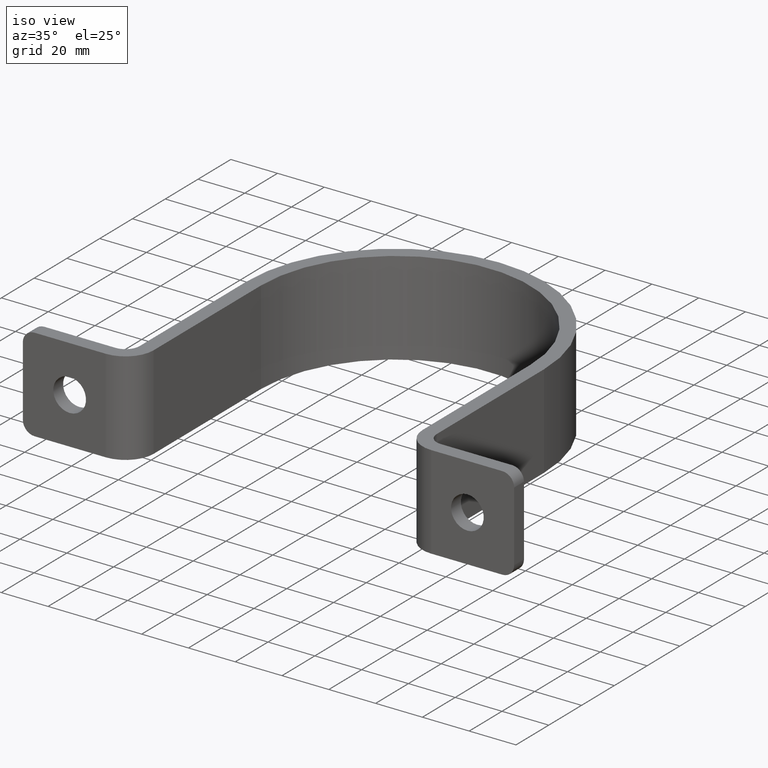
[diagram: clean part render]
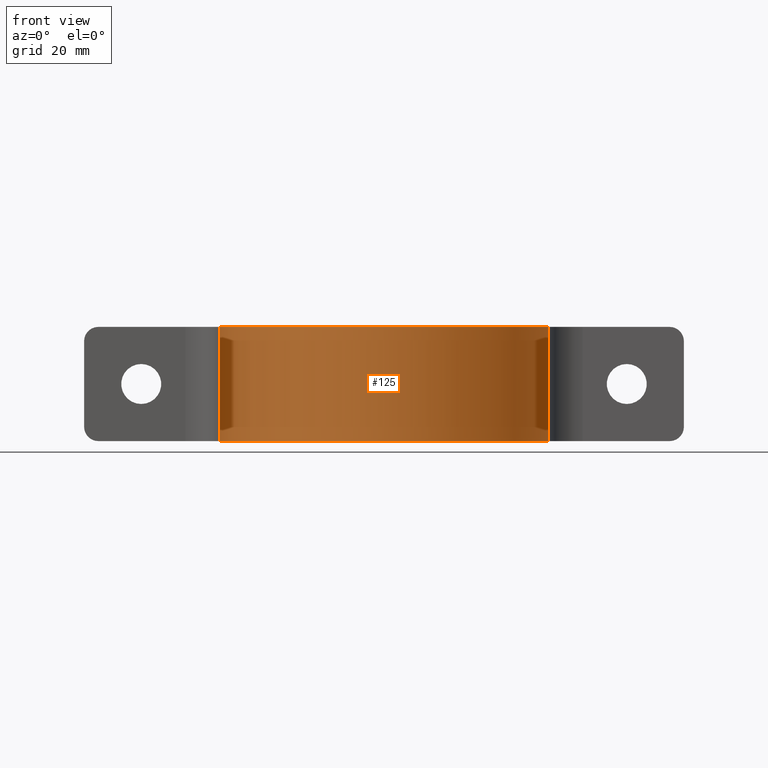
[diagram: tour spotlight — one face highlighted and labeled with its STEP entity id]
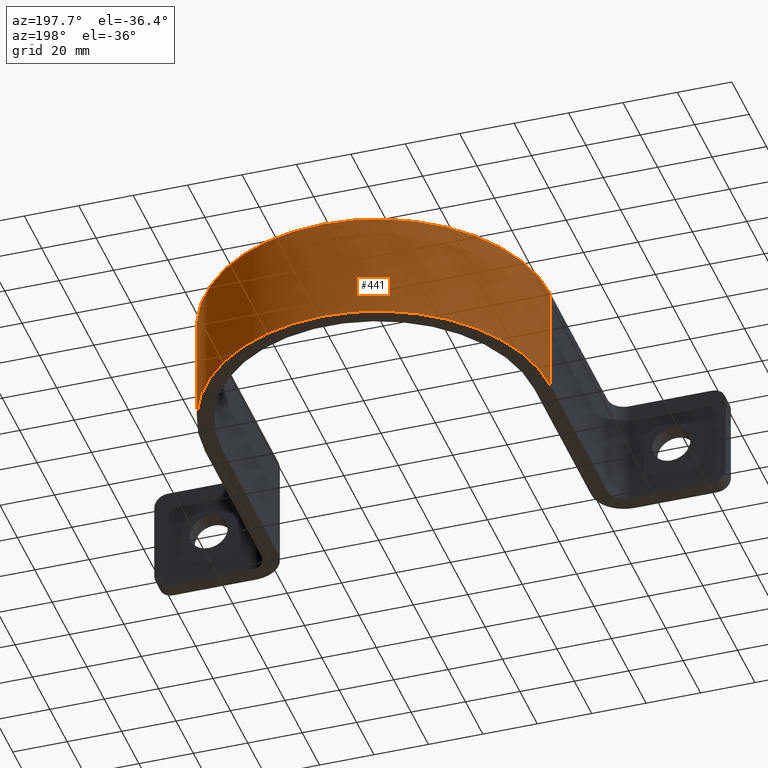
[diagram: tour spotlight — one face highlighted and labeled with its STEP entity id]
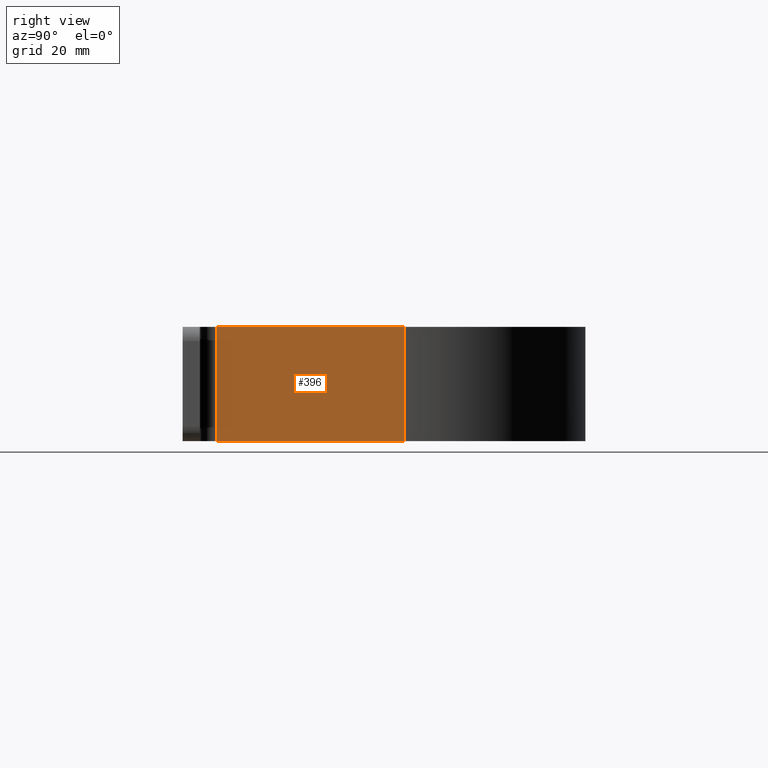
[diagram: tour spotlight — one face highlighted and labeled with its STEP entity id]
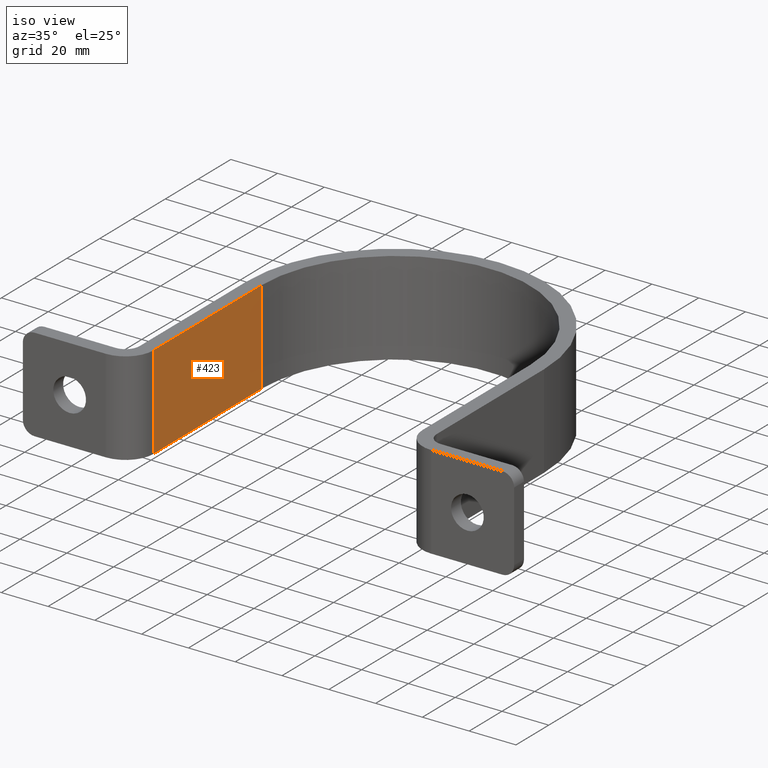
[diagram: tour spotlight — one face highlighted and labeled with its STEP entity id]
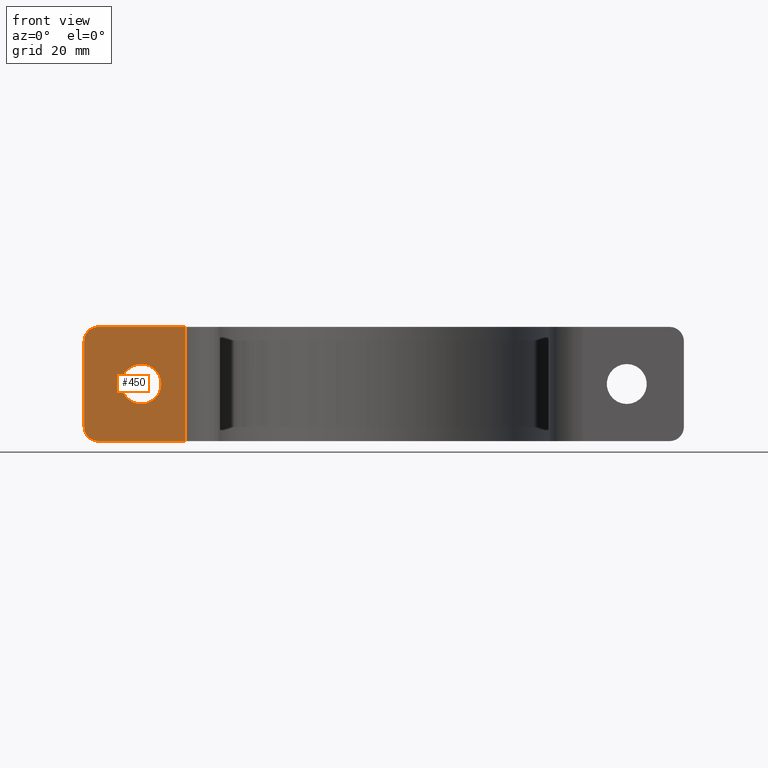
[diagram: tour spotlight — one face highlighted and labeled with its STEP entity id]
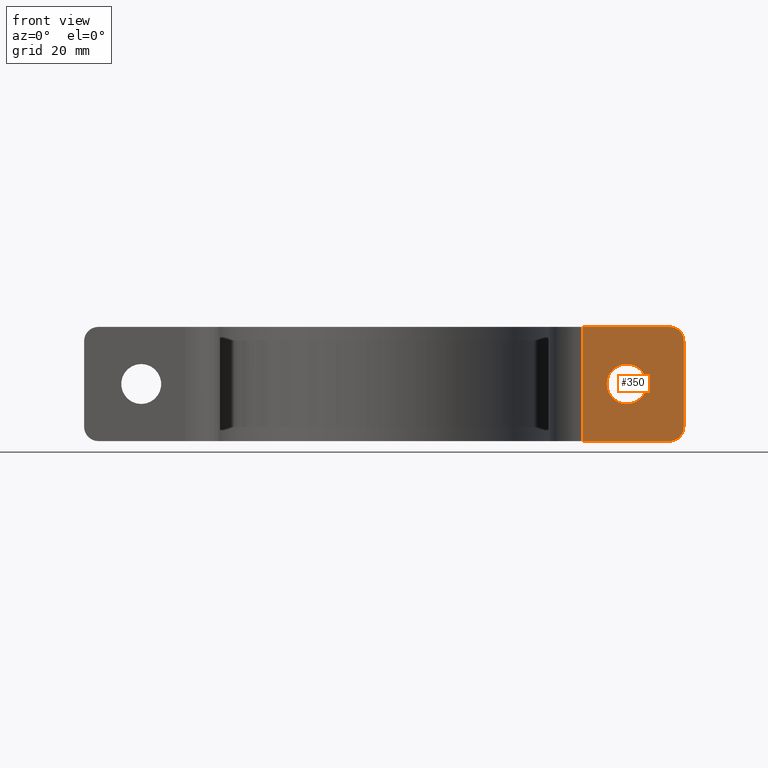
[diagram: tour spotlight — one face highlighted and labeled with its STEP entity id]
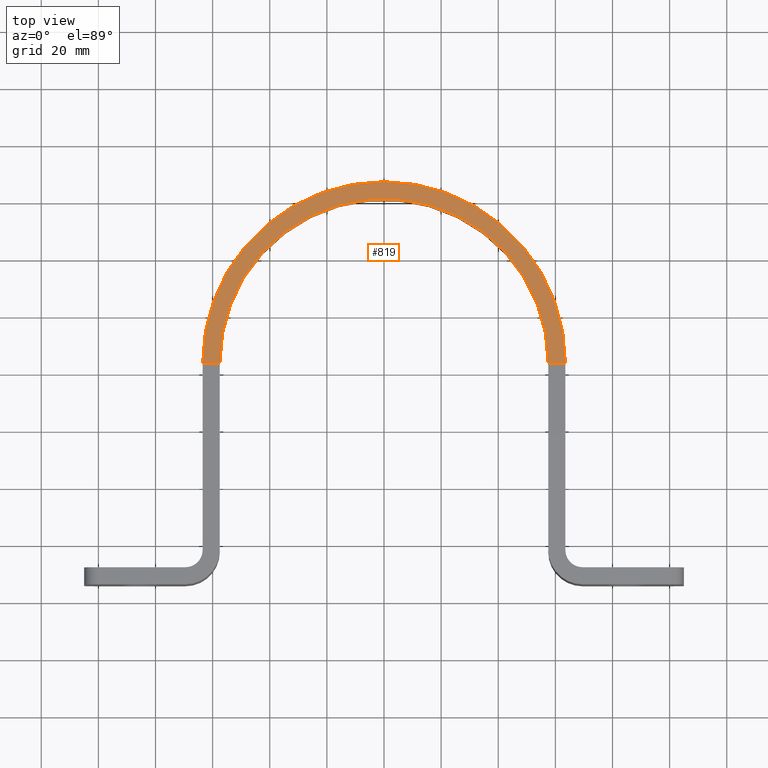
[diagram: tour spotlight — one face highlighted and labeled with its STEP entity id]
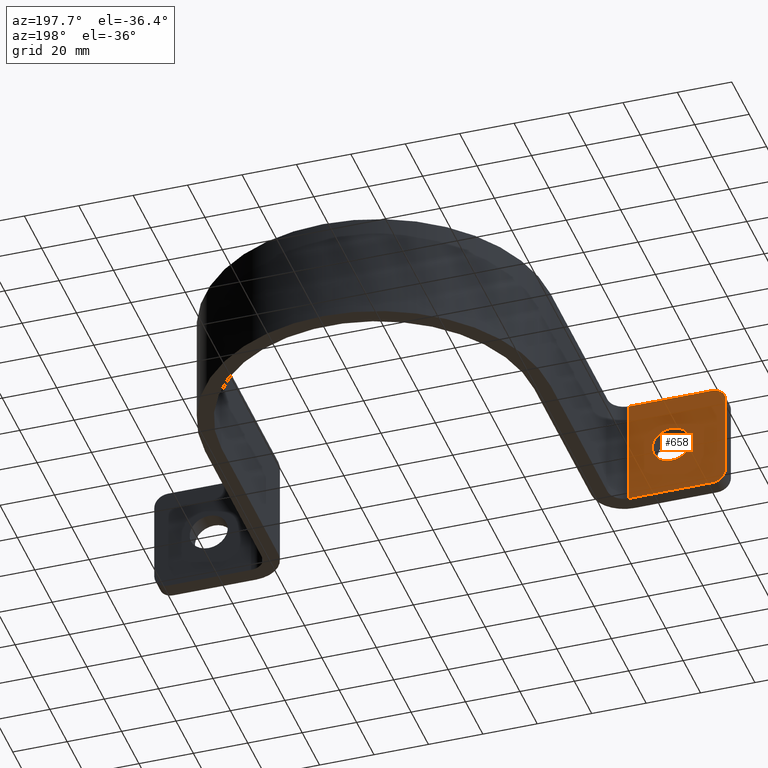
[diagram: tour spotlight — one face highlighted and labeled with its STEP entity id]
A machine part: a face-by-face anatomy tour. The part has 38 B-rep faces; the first image is the clean iso view, then the 8 largest visible faces are spotlighted one at a time (largest first), each with its STEP entity span.

Face 1 — front view, entity #125. In plain terms, the highlighted cylindrical surface (partial cylindrical patch) has radius 57.5 mm, axis along (-0, -0, -1).
Definition (entity closure, byte-faithful):
#1 = EDGE_CURVE ( 'NONE', #641, #24, #779, .T. ) ;
#13 = CARTESIAN_POINT ( 'NONE',  ( -57.50000000000000711, 83.49999999999995737, 20.00000000000000000 ) ) ;
#24 = VERTEX_POINT ( 'NONE', #1067 ) ;
#39 = FACE_OUTER_BOUND ( 'NONE', #195, .T. ) ;
#69 = VERTEX_POINT ( 'NONE', #240 ) ;
#71 = LINE ( 'NONE', #681, #452 ) ;
#82 = AXIS2_PLACEMENT_3D ( 'NONE', #667, #408, #137 ) ;
#124 = ORIENTED_EDGE ( 'NONE', *, *, #1, .T. ) ;
#125 = ADVANCED_FACE ( 'NONE', ( #39 ), #589, .F. ) ;
#137 = DIRECTION ( 'NONE',  ( -1.000000000000000000, 0.000000000000000000, 0.000000000000000000 ) ) ;
#195 = EDGE_LOOP ( 'NONE', ( #124, #862, #733, #753 ) ) ;
#198 = CARTESIAN_POINT ( 'NONE',  ( 0.000000000000000000, 83.49999999999997158, -20.00000000000000000 ) ) ;
#200 = DIRECTION ( 'NONE',  ( -1.000000000000000000, 0.000000000000000000, 0.000000000000000000 ) ) ;
#226 = EDGE_CURVE ( 'NONE', #853, #641, #828, .T. ) ;
#240 = CARTESIAN_POINT ( 'NONE',  ( 57.50000000000000711, 83.49999999999998579, 20.00000000000000000 ) ) ;
#295 = CIRCLE ( 'NONE', #915, 57.50000000000000711 ) ;
#296 = DIRECTION ( 'NONE',  ( -0.000000000000000000, -0.000000000000000000, -1.000000000000000000 ) ) ;
#367 = EDGE_CURVE ( 'NONE', #69, #24, #71, .T. ) ;
#387 = AXIS2_PLACEMENT_3D ( 'NONE', #198, #564, #632 ) ;
#408 = DIRECTION ( 'NONE',  ( -0.000000000000000000, -0.000000000000000000, -1.000000000000000000 ) ) ;
#416 = CARTESIAN_POINT ( 'NONE',  ( -57.50000000000000711, 83.49999999999995737, 20.00000000000000000 ) ) ;
#436 = VECTOR ( 'NONE', #752, 1000.000000000000000 ) ;
#452 = VECTOR ( 'NONE', #821, 1000.000000000000000 ) ;
#545 = CARTESIAN_POINT ( 'NONE',  ( 0.000000000000000000, 83.49999999999997158, 20.00000000000000000 ) ) ;
#564 = DIRECTION ( 'NONE',  ( -0.000000000000000000, -0.000000000000000000, -1.000000000000000000 ) ) ;
#589 = CYLINDRICAL_SURFACE ( 'NONE', #82, 57.50000000000000711 ) ;
#632 = DIRECTION ( 'NONE',  ( -1.000000000000000000, 0.000000000000000000, 0.000000000000000000 ) ) ;
#641 = VERTEX_POINT ( 'NONE', #899 ) ;
#667 = CARTESIAN_POINT ( 'NONE',  ( 0.000000000000000000, 83.49999999999997158, 20.00000000000000000 ) ) ;
#681 = CARTESIAN_POINT ( 'NONE',  ( 57.50000000000000711, 83.49999999999998579, 20.00000000000000000 ) ) ;
#733 = ORIENTED_EDGE ( 'NONE', *, *, #962, .F. ) ;
#752 = DIRECTION ( 'NONE',  ( -0.000000000000000000, -0.000000000000000000, -1.000000000000000000 ) ) ;
#753 = ORIENTED_EDGE ( 'NONE', *, *, #226, .T. ) ;
#779 = CIRCLE ( 'NONE', #387, 57.50000000000000711 ) ;
#821 = DIRECTION ( 'NONE',  ( -0.000000000000000000, -0.000000000000000000, -1.000000000000000000 ) ) ;
#828 = LINE ( 'NONE', #416, #436 ) ;
#853 = VERTEX_POINT ( 'NONE', #13 ) ;
#862 = ORIENTED_EDGE ( 'NONE', *, *, #367, .F. ) ;
#899 = CARTESIAN_POINT ( 'NONE',  ( -57.50000000000000711, 83.49999999999995737, -20.00000000000000000 ) ) ;
#915 = AXIS2_PLACEMENT_3D ( 'NONE', #545, #296, #200 ) ;
#962 = EDGE_CURVE ( 'NONE', #853, #69, #295, .T. ) ;
#1067 = CARTESIAN_POINT ( 'NONE',  ( 57.50000000000000711, 83.49999999999998579, -20.00000000000000000 ) ) ;

Face 2 — auxiliary view, entity #441. In plain terms, the highlighted cylindrical surface (partial cylindrical patch) has radius 63.5 mm, axis along (-0, -0, -1).
Definition (entity closure, byte-faithful):
#32 = VERTEX_POINT ( 'NONE', #623 ) ;
#49 = EDGE_CURVE ( 'NONE', #32, #572, #517, .T. ) ;
#100 = VECTOR ( 'NONE', #756, 1000.000000000000000 ) ;
#105 = ORIENTED_EDGE ( 'NONE', *, *, #1001, .F. ) ;
#130 = CYLINDRICAL_SURFACE ( 'NONE', #1061, 63.50000000000001421 ) ;
#136 = CIRCLE ( 'NONE', #252, 63.50000000000001421 ) ;
#141 = DIRECTION ( 'NONE',  ( -1.000000000000000000, 0.000000000000000000, 0.000000000000000000 ) ) ;
#150 = DIRECTION ( 'NONE',  ( -0.000000000000000000, -0.000000000000000000, -1.000000000000000000 ) ) ;
#164 = ORIENTED_EDGE ( 'NONE', *, *, #924, .T. ) ;
#191 = DIRECTION ( 'NONE',  ( -0.000000000000000000, -0.000000000000000000, -1.000000000000000000 ) ) ;
#218 = FACE_OUTER_BOUND ( 'NONE', #290, .T. ) ;
#222 = VECTOR ( 'NONE', #150, 1000.000000000000000 ) ;
#252 = AXIS2_PLACEMENT_3D ( 'NONE', #561, #960, #283 ) ;
#253 = DIRECTION ( 'NONE',  ( -0.000000000000000000, -0.000000000000000000, -1.000000000000000000 ) ) ;
#273 = LINE ( 'NONE', #599, #100 ) ;
#278 = DIRECTION ( 'NONE',  ( 1.000000000000000000, 0.000000000000000000, 0.000000000000000000 ) ) ;
#283 = DIRECTION ( 'NONE',  ( 1.000000000000000000, 0.000000000000000000, 0.000000000000000000 ) ) ;
#290 = EDGE_LOOP ( 'NONE', ( #105, #1069, #164, #873 ) ) ;
#337 = EDGE_CURVE ( 'NONE', #486, #444, #273, .T. ) ;
#388 = CARTESIAN_POINT ( 'NONE',  ( 0.000000000000000000, 83.49999999999997158, -20.00000000000000000 ) ) ;
#389 = AXIS2_PLACEMENT_3D ( 'NONE', #388, #191, #278 ) ;
#441 = ADVANCED_FACE ( 'NONE', ( #218 ), #130, .T. ) ;
#444 = VERTEX_POINT ( 'NONE', #825 ) ;
#486 = VERTEX_POINT ( 'NONE', #839 ) ;
#496 = CARTESIAN_POINT ( 'NONE',  ( 63.50000000000001421, 83.49999999999998579, 20.00000000000000000 ) ) ;
#501 = CIRCLE ( 'NONE', #389, 63.50000000000001421 ) ;
#517 = LINE ( 'NONE', #496, #222 ) ;
#561 = CARTESIAN_POINT ( 'NONE',  ( 0.000000000000000000, 83.49999999999997158, 20.00000000000000000 ) ) ;
#572 = VERTEX_POINT ( 'NONE', #749 ) ;
#599 = CARTESIAN_POINT ( 'NONE',  ( -63.50000000000001421, 83.49999999999998579, 20.00000000000000000 ) ) ;
#623 = CARTESIAN_POINT ( 'NONE',  ( 63.50000000000001421, 83.49999999999998579, 20.00000000000000000 ) ) ;
#749 = CARTESIAN_POINT ( 'NONE',  ( 63.50000000000001421, 83.49999999999998579, -20.00000000000000000 ) ) ;
#756 = DIRECTION ( 'NONE',  ( -0.000000000000000000, -0.000000000000000000, -1.000000000000000000 ) ) ;
#825 = CARTESIAN_POINT ( 'NONE',  ( -63.50000000000001421, 83.49999999999998579, -20.00000000000000000 ) ) ;
#839 = CARTESIAN_POINT ( 'NONE',  ( -63.50000000000001421, 83.49999999999998579, 20.00000000000000000 ) ) ;
#873 = ORIENTED_EDGE ( 'NONE', *, *, #49, .T. ) ;
#924 = EDGE_CURVE ( 'NONE', #486, #32, #136, .T. ) ;
#960 = DIRECTION ( 'NONE',  ( -0.000000000000000000, -0.000000000000000000, -1.000000000000000000 ) ) ;
#1001 = EDGE_CURVE ( 'NONE', #444, #572, #501, .T. ) ;
#1010 = CARTESIAN_POINT ( 'NONE',  ( 0.000000000000000000, 83.49999999999997158, 20.00000000000000000 ) ) ;
#1061 = AXIS2_PLACEMENT_3D ( 'NONE', #1010, #253, #141 ) ;
#1069 = ORIENTED_EDGE ( 'NONE', *, *, #337, .F. ) ;

Face 3 — right view, entity #396. In plain terms, the highlighted planar face has unit normal (1, 0, -0).
Definition (entity closure, byte-faithful):
#32 = VERTEX_POINT ( 'NONE', #623 ) ;
#49 = EDGE_CURVE ( 'NONE', #32, #572, #517, .T. ) ;
#96 = ORIENTED_EDGE ( 'NONE', *, *, #193, .T. ) ;
#150 = DIRECTION ( 'NONE',  ( -0.000000000000000000, -0.000000000000000000, -1.000000000000000000 ) ) ;
#154 = FACE_OUTER_BOUND ( 'NONE', #453, .T. ) ;
#190 = VERTEX_POINT ( 'NONE', #823 ) ;
#193 = EDGE_CURVE ( 'NONE', #723, #190, #907, .T. ) ;
#222 = VECTOR ( 'NONE', #150, 1000.000000000000000 ) ;
#335 = DIRECTION ( 'NONE',  ( -0.000000000000000000, 0.000000000000000000, -1.000000000000000000 ) ) ;
#396 = ADVANCED_FACE ( 'NONE', ( #154 ), #419, .T. ) ;
#397 = LINE ( 'NONE', #1009, #795 ) ;
#419 = PLANE ( 'NONE',  #880 ) ;
#453 = EDGE_LOOP ( 'NONE', ( #474, #590, #842, #96 ) ) ;
#462 = CARTESIAN_POINT ( 'NONE',  ( 63.50000000000001421, 83.49999999999995737, 20.00000000000000000 ) ) ;
#474 = ORIENTED_EDGE ( 'NONE', *, *, #1080, .F. ) ;
#496 = CARTESIAN_POINT ( 'NONE',  ( 63.50000000000001421, 83.49999999999998579, 20.00000000000000000 ) ) ;
#517 = LINE ( 'NONE', #496, #222 ) ;
#567 = DIRECTION ( 'NONE',  ( -0.000000000000000000, -1.000000000000000000, 0.000000000000000000 ) ) ;
#572 = VERTEX_POINT ( 'NONE', #749 ) ;
#590 = ORIENTED_EDGE ( 'NONE', *, *, #49, .F. ) ;
#623 = CARTESIAN_POINT ( 'NONE',  ( 63.50000000000001421, 83.49999999999998579, 20.00000000000000000 ) ) ;
#659 = DIRECTION ( 'NONE',  ( -0.000000000000000000, -0.000000000000000000, -1.000000000000000000 ) ) ;
#723 = VERTEX_POINT ( 'NONE', #1106 ) ;
#724 = DIRECTION ( 'NONE',  ( -0.000000000000000000, -1.000000000000000000, 0.000000000000000000 ) ) ;
#747 = CARTESIAN_POINT ( 'NONE',  ( 63.50000000000001421, 83.49999999999995737, 20.00000000000000000 ) ) ;
#749 = CARTESIAN_POINT ( 'NONE',  ( 63.50000000000001421, 83.49999999999998579, -20.00000000000000000 ) ) ;
#795 = VECTOR ( 'NONE', #567, 1000.000000000000000 ) ;
#801 = LINE ( 'NONE', #462, #1018 ) ;
#823 = CARTESIAN_POINT ( 'NONE',  ( 63.50000000000000000, 17.99999999999998934, -20.00000000000000000 ) ) ;
#842 = ORIENTED_EDGE ( 'NONE', *, *, #955, .T. ) ;
#848 = VECTOR ( 'NONE', #659, 1000.000000000000000 ) ;
#880 = AXIS2_PLACEMENT_3D ( 'NONE', #747, #1004, #335 ) ;
#907 = LINE ( 'NONE', #1074, #848 ) ;
#955 = EDGE_CURVE ( 'NONE', #32, #723, #801, .T. ) ;
#1004 = DIRECTION ( 'NONE',  ( 1.000000000000000000, 0.000000000000000000, -0.000000000000000000 ) ) ;
#1009 = CARTESIAN_POINT ( 'NONE',  ( 63.50000000000001421, 83.49999999999995737, -20.00000000000000000 ) ) ;
#1018 = VECTOR ( 'NONE', #724, 1000.000000000000000 ) ;
#1074 = CARTESIAN_POINT ( 'NONE',  ( 63.50000000000000000, 17.99999999999998934, 20.00000000000000000 ) ) ;
#1080 = EDGE_CURVE ( 'NONE', #572, #190, #397, .T. ) ;
#1106 = CARTESIAN_POINT ( 'NONE',  ( 63.50000000000000000, 17.99999999999998934, 20.00000000000000000 ) ) ;

Face 4 — iso view, entity #423. In plain terms, the highlighted planar face has unit normal (-1, 0, 0).
Definition (entity closure, byte-faithful):
#12 = EDGE_CURVE ( 'NONE', #216, #853, #547, .T. ) ;
#13 = CARTESIAN_POINT ( 'NONE',  ( -57.50000000000000711, 83.49999999999995737, 20.00000000000000000 ) ) ;
#31 = EDGE_CURVE ( 'NONE', #808, #641, #703, .T. ) ;
#77 = ORIENTED_EDGE ( 'NONE', *, *, #31, .T. ) ;
#103 = VECTOR ( 'NONE', #1055, 1000.000000000000000 ) ;
#112 = LINE ( 'NONE', #556, #103 ) ;
#216 = VERTEX_POINT ( 'NONE', #497 ) ;
#226 = EDGE_CURVE ( 'NONE', #853, #641, #828, .T. ) ;
#274 = DIRECTION ( 'NONE',  ( 0.000000000000000000, 1.000000000000000000, 0.000000000000000000 ) ) ;
#382 = ORIENTED_EDGE ( 'NONE', *, *, #226, .F. ) ;
#398 = CARTESIAN_POINT ( 'NONE',  ( -57.50000000000000711, 5.999999999999974243, 20.00000000000000000 ) ) ;
#403 = PLANE ( 'NONE',  #415 ) ;
#415 = AXIS2_PLACEMENT_3D ( 'NONE', #398, #988, #1017 ) ;
#416 = CARTESIAN_POINT ( 'NONE',  ( -57.50000000000000711, 83.49999999999995737, 20.00000000000000000 ) ) ;
#423 = ADVANCED_FACE ( 'NONE', ( #675 ), #403, .F. ) ;
#436 = VECTOR ( 'NONE', #752, 1000.000000000000000 ) ;
#497 = CARTESIAN_POINT ( 'NONE',  ( -57.50000000000000711, 17.99999999999997513, 20.00000000000000000 ) ) ;
#523 = VECTOR ( 'NONE', #730, 1000.000000000000000 ) ;
#547 = LINE ( 'NONE', #872, #523 ) ;
#554 = ORIENTED_EDGE ( 'NONE', *, *, #903, .T. ) ;
#556 = CARTESIAN_POINT ( 'NONE',  ( -57.50000000000000711, 17.99999999999997513, 20.00000000000000000 ) ) ;
#630 = VECTOR ( 'NONE', #274, 1000.000000000000000 ) ;
#641 = VERTEX_POINT ( 'NONE', #899 ) ;
#675 = FACE_OUTER_BOUND ( 'NONE', #917, .T. ) ;
#703 = LINE ( 'NONE', #1038, #630 ) ;
#704 = CARTESIAN_POINT ( 'NONE',  ( -57.50000000000000711, 17.99999999999997513, -20.00000000000000000 ) ) ;
#705 = ORIENTED_EDGE ( 'NONE', *, *, #12, .F. ) ;
#730 = DIRECTION ( 'NONE',  ( 0.000000000000000000, 1.000000000000000000, 0.000000000000000000 ) ) ;
#752 = DIRECTION ( 'NONE',  ( -0.000000000000000000, -0.000000000000000000, -1.000000000000000000 ) ) ;
#808 = VERTEX_POINT ( 'NONE', #704 ) ;
#828 = LINE ( 'NONE', #416, #436 ) ;
#853 = VERTEX_POINT ( 'NONE', #13 ) ;
#872 = CARTESIAN_POINT ( 'NONE',  ( -57.50000000000000711, 5.999999999999974243, 20.00000000000000000 ) ) ;
#899 = CARTESIAN_POINT ( 'NONE',  ( -57.50000000000000711, 83.49999999999995737, -20.00000000000000000 ) ) ;
#903 = EDGE_CURVE ( 'NONE', #216, #808, #112, .T. ) ;
#917 = EDGE_LOOP ( 'NONE', ( #77, #382, #705, #554 ) ) ;
#988 = DIRECTION ( 'NONE',  ( -1.000000000000000000, 0.000000000000000000, 0.000000000000000000 ) ) ;
#1017 = DIRECTION ( 'NONE',  ( 0.000000000000000000, 0.000000000000000000, 1.000000000000000000 ) ) ;
#1038 = CARTESIAN_POINT ( 'NONE',  ( -57.50000000000000711, 5.999999999999974243, -20.00000000000000000 ) ) ;
#1055 = DIRECTION ( 'NONE',  ( -0.000000000000000000, -0.000000000000000000, -1.000000000000000000 ) ) ;

Face 5 — front view, entity #450. In plain terms, the highlighted planar face has unit normal (0, 1, 0).
Definition (entity closure, byte-faithful):
#9 = DIRECTION ( 'NONE',  ( -0.000000000000000000, 1.000000000000000000, -0.000000000000000000 ) ) ;
#52 = CARTESIAN_POINT ( 'NONE',  ( -105.0000000000000000, 5.999999999999974243, 20.00000000000000000 ) ) ;
#54 = CARTESIAN_POINT ( 'NONE',  ( -105.0000000000000000, 5.999999999999974243, 20.00000000000000000 ) ) ;
#56 = EDGE_CURVE ( 'NONE', #1002, #271, #355, .T. ) ;
#58 = DIRECTION ( 'NONE',  ( -0.000000000000000000, -1.000000000000000000, -0.000000000000000000 ) ) ;
#88 = CARTESIAN_POINT ( 'NONE',  ( -105.0000000000000000, 5.999999999999974243, -15.00000000000000355 ) ) ;
#95 = DIRECTION ( 'NONE',  ( 0.000000000000000000, 0.000000000000000000, 1.000000000000000000 ) ) ;
#98 = VECTOR ( 'NONE', #647, 1000.000000000000000 ) ;
#104 = VERTEX_POINT ( 'NONE', #967 ) ;
#122 = VERTEX_POINT ( 'NONE', #810 ) ;
#132 = AXIS2_PLACEMENT_3D ( 'NONE', #695, #9, #708 ) ;
#138 = EDGE_CURVE ( 'NONE', #1002, #401, #578, .T. ) ;
#162 = CARTESIAN_POINT ( 'NONE',  ( -105.0000000000000000, 5.999999999999974243, 15.00000000000000000 ) ) ;
#183 = CARTESIAN_POINT ( 'NONE',  ( -99.99999999999997158, 5.999999999999974243, -15.00000000000000000 ) ) ;
#207 = ORIENTED_EDGE ( 'NONE', *, *, #245, .T. ) ;
#209 = EDGE_CURVE ( 'NONE', #271, #327, #490, .T. ) ;
#220 = CIRCLE ( 'NONE', #1105, 6.999999999999992006 ) ;
#230 = DIRECTION ( 'NONE',  ( 0.000000000000000000, -0.000000000000000000, 1.000000000000000000 ) ) ;
#235 = ORIENTED_EDGE ( 'NONE', *, *, #326, .T. ) ;
#241 = CARTESIAN_POINT ( 'NONE',  ( -105.0000000000000000, 5.999999999999974243, -20.00000000000000000 ) ) ;
#244 = FACE_OUTER_BOUND ( 'NONE', #885, .T. ) ;
#245 = EDGE_CURVE ( 'NONE', #638, #104, #672, .T. ) ;
#254 = CARTESIAN_POINT ( 'NONE',  ( -85.00000000000000000, 5.999999999999967137, 0.000000000000000000 ) ) ;
#268 = VECTOR ( 'NONE', #743, 1000.000000000000000 ) ;
#271 = VERTEX_POINT ( 'NONE', #162 ) ;
#272 = CARTESIAN_POINT ( 'NONE',  ( -85.00000000000000000, 5.999999999999967137, -6.999999999999992006 ) ) ;
#275 = CARTESIAN_POINT ( 'NONE',  ( -69.50000000000000000, 5.999999999999974243, 20.00000000000000000 ) ) ;
#322 = DIRECTION ( 'NONE',  ( 0.000000000000000000, 1.000000000000000000, 0.000000000000000000 ) ) ;
#326 = EDGE_CURVE ( 'NONE', #327, #638, #972, .T. ) ;
#327 = VERTEX_POINT ( 'NONE', #88 ) ;
#344 = CIRCLE ( 'NONE', #132, 6.999999999999992006 ) ;
#346 = DIRECTION ( 'NONE',  ( -0.000000000000000000, 1.000000000000000000, -0.000000000000000000 ) ) ;
#355 = CIRCLE ( 'NONE', #700, 5.000000000000000888 ) ;
#369 = ORIENTED_EDGE ( 'NONE', *, *, #138, .F. ) ;
#401 = VERTEX_POINT ( 'NONE', #910 ) ;
#445 = DIRECTION ( 'NONE',  ( 0.000000000000000000, 0.000000000000000000, 1.000000000000000000 ) ) ;
#450 = ADVANCED_FACE ( 'NONE', ( #493, #244 ), #1077, .F. ) ;
#455 = LINE ( 'NONE', #275, #615 ) ;
#490 = LINE ( 'NONE', #52, #98 ) ;
#493 = FACE_BOUND ( 'NONE', #875, .T. ) ;
#504 = AXIS2_PLACEMENT_3D ( 'NONE', #183, #941, #95 ) ;
#578 = LINE ( 'NONE', #1068, #268 ) ;
#615 = VECTOR ( 'NONE', #783, 1000.000000000000000 ) ;
#638 = VERTEX_POINT ( 'NONE', #999 ) ;
#647 = DIRECTION ( 'NONE',  ( -0.000000000000000000, -0.000000000000000000, -1.000000000000000000 ) ) ;
#672 = LINE ( 'NONE', #241, #714 ) ;
#695 = CARTESIAN_POINT ( 'NONE',  ( -85.00000000000000000, 5.999999999999967137, 0.000000000000000000 ) ) ;
#700 = AXIS2_PLACEMENT_3D ( 'NONE', #827, #58, #737 ) ;
#708 = DIRECTION ( 'NONE',  ( 0.000000000000000000, 0.000000000000000000, 1.000000000000000000 ) ) ;
#714 = VECTOR ( 'NONE', #1063, 1000.000000000000000 ) ;
#719 = ORIENTED_EDGE ( 'NONE', *, *, #209, .T. ) ;
#728 = EDGE_CURVE ( 'NONE', #805, #122, #344, .T. ) ;
#737 = DIRECTION ( 'NONE',  ( 0.000000000000000000, 0.000000000000000000, 1.000000000000000000 ) ) ;
#743 = DIRECTION ( 'NONE',  ( 1.000000000000000000, 0.000000000000000000, 0.000000000000000000 ) ) ;
#763 = EDGE_CURVE ( 'NONE', #122, #805, #220, .T. ) ;
#772 = ORIENTED_EDGE ( 'NONE', *, *, #56, .T. ) ;
#783 = DIRECTION ( 'NONE',  ( -0.000000000000000000, -0.000000000000000000, -1.000000000000000000 ) ) ;
#805 = VERTEX_POINT ( 'NONE', #272 ) ;
#810 = CARTESIAN_POINT ( 'NONE',  ( -85.00000000000000000, 5.999999999999967137, 6.999999999999992006 ) ) ;
#827 = CARTESIAN_POINT ( 'NONE',  ( -99.99999999999998579, 5.999999999999974243, 15.00000000000000000 ) ) ;
#835 = EDGE_CURVE ( 'NONE', #401, #104, #455, .T. ) ;
#869 = CARTESIAN_POINT ( 'NONE',  ( -99.99999999999998579, 5.999999999999974243, 20.00000000000000000 ) ) ;
#875 = EDGE_LOOP ( 'NONE', ( #986, #927 ) ) ;
#885 = EDGE_LOOP ( 'NONE', ( #719, #235, #207, #1054, #369, #772 ) ) ;
#910 = CARTESIAN_POINT ( 'NONE',  ( -69.50000000000000000, 5.999999999999974243, 20.00000000000000000 ) ) ;
#927 = ORIENTED_EDGE ( 'NONE', *, *, #728, .T. ) ;
#941 = DIRECTION ( 'NONE',  ( -0.000000000000000000, -1.000000000000000000, -0.000000000000000000 ) ) ;
#967 = CARTESIAN_POINT ( 'NONE',  ( -69.50000000000000000, 5.999999999999974243, -20.00000000000000000 ) ) ;
#972 = CIRCLE ( 'NONE', #504, 5.000000000000000888 ) ;
#973 = AXIS2_PLACEMENT_3D ( 'NONE', #54, #322, #230 ) ;
#986 = ORIENTED_EDGE ( 'NONE', *, *, #763, .T. ) ;
#999 = CARTESIAN_POINT ( 'NONE',  ( -99.99999999999997158, 5.999999999999974243, -20.00000000000000000 ) ) ;
#1002 = VERTEX_POINT ( 'NONE', #869 ) ;
#1054 = ORIENTED_EDGE ( 'NONE', *, *, #835, .F. ) ;
#1063 = DIRECTION ( 'NONE',  ( 1.000000000000000000, 0.000000000000000000, 0.000000000000000000 ) ) ;
#1068 = CARTESIAN_POINT ( 'NONE',  ( -105.0000000000000000, 5.999999999999974243, 20.00000000000000000 ) ) ;
#1077 = PLANE ( 'NONE',  #973 ) ;
#1105 = AXIS2_PLACEMENT_3D ( 'NONE', #254, #346, #445 ) ;

Face 6 — front view, entity #350. In plain terms, the highlighted planar face has unit normal (-0, 1, 0).
Definition (entity closure, byte-faithful):
#5 = VECTOR ( 'NONE', #592, 1000.000000000000000 ) ;
#23 = CIRCLE ( 'NONE', #359, 6.999999999999992006 ) ;
#91 = EDGE_CURVE ( 'NONE', #837, #1015, #727, .T. ) ;
#94 = CARTESIAN_POINT ( 'NONE',  ( 99.99999999999998579, 6.000000000000031086, -15.00000000000000000 ) ) ;
#107 = ORIENTED_EDGE ( 'NONE', *, *, #585, .T. ) ;
#126 = EDGE_CURVE ( 'NONE', #786, #428, #1101, .T. ) ;
#172 = DIRECTION ( 'NONE',  ( 1.351258286550355342E-15, -1.000000000000000000, -0.000000000000000000 ) ) ;
#185 = ORIENTED_EDGE ( 'NONE', *, *, #467, .T. ) ;
#188 = VECTOR ( 'NONE', #874, 1000.000000000000000 ) ;
#189 = CIRCLE ( 'NONE', #865, 5.000000000000004441 ) ;
#192 = AXIS2_PLACEMENT_3D ( 'NONE', #94, #172, #353 ) ;
#239 = DIRECTION ( 'NONE',  ( 0.000000000000000000, 0.000000000000000000, 1.000000000000000000 ) ) ;
#259 = ORIENTED_EDGE ( 'NONE', *, *, #785, .T. ) ;
#298 = AXIS2_PLACEMENT_3D ( 'NONE', #1107, #446, #775 ) ;
#309 = CARTESIAN_POINT ( 'NONE',  ( 99.99999999999998579, 6.000000000000031086, 20.00000000000000000 ) ) ;
#311 = DIRECTION ( 'NONE',  ( -0.000000000000000000, 1.000000000000000000, -0.000000000000000000 ) ) ;
#350 = ADVANCED_FACE ( 'NONE', ( #1096, #926 ), #518, .F. ) ;
#353 = DIRECTION ( 'NONE',  ( -1.000000000000000000, -1.387778780781444492E-15, 0.000000000000000000 ) ) ;
#359 = AXIS2_PLACEMENT_3D ( 'NONE', #822, #311, #239 ) ;
#390 = VECTOR ( 'NONE', #788, 1000.000000000000000 ) ;
#394 = DIRECTION ( 'NONE',  ( 0.000000000000000000, 0.000000000000000000, 1.000000000000000000 ) ) ;
#410 = DIRECTION ( 'NONE',  ( -1.000000000000000000, -1.387778780781444492E-15, 0.000000000000000000 ) ) ;
#411 = LINE ( 'NONE', #1088, #5 ) ;
#427 = CARTESIAN_POINT ( 'NONE',  ( 85.00000000000000000, 5.999999999999970690, -7.000000000000023981 ) ) ;
#428 = VERTEX_POINT ( 'NONE', #427 ) ;
#435 = CIRCLE ( 'NONE', #192, 5.000000000000004441 ) ;
#446 = DIRECTION ( 'NONE',  ( -1.351258286550355342E-15, 1.000000000000000000, 0.000000000000000000 ) ) ;
#467 = EDGE_CURVE ( 'NONE', #837, #468, #411, .T. ) ;
#468 = VERTEX_POINT ( 'NONE', #670 ) ;
#472 = VERTEX_POINT ( 'NONE', #920 ) ;
#476 = DIRECTION ( 'NONE',  ( -0.000000000000000000, 1.000000000000000000, -0.000000000000000000 ) ) ;
#492 = CARTESIAN_POINT ( 'NONE',  ( 99.99999999999998579, 6.000000000000031086, 15.00000000000000000 ) ) ;
#510 = LINE ( 'NONE', #1070, #940 ) ;
#516 = CARTESIAN_POINT ( 'NONE',  ( 69.50000000000001421, 5.999999999999990230, 20.00000000000000000 ) ) ;
#518 = PLANE ( 'NONE',  #298 ) ;
#519 = EDGE_CURVE ( 'NONE', #1064, #739, #636, .T. ) ;
#525 = CARTESIAN_POINT ( 'NONE',  ( 57.50000000000000711, 5.999999999999974243, 20.00000000000000000 ) ) ;
#530 = CARTESIAN_POINT ( 'NONE',  ( 105.0000000000000000, 6.000000000000038192, -15.00000000000000355 ) ) ;
#585 = EDGE_CURVE ( 'NONE', #428, #786, #23, .T. ) ;
#592 = DIRECTION ( 'NONE',  ( -0.000000000000000000, -0.000000000000000000, -1.000000000000000000 ) ) ;
#612 = EDGE_LOOP ( 'NONE', ( #1057, #259, #789, #858, #668, #185 ) ) ;
#613 = ORIENTED_EDGE ( 'NONE', *, *, #126, .T. ) ;
#636 = LINE ( 'NONE', #983, #390 ) ;
#668 = ORIENTED_EDGE ( 'NONE', *, *, #91, .F. ) ;
#669 = DIRECTION ( 'NONE',  ( 1.351258286550355342E-15, -1.000000000000000000, -0.000000000000000000 ) ) ;
#670 = CARTESIAN_POINT ( 'NONE',  ( 69.50000000000001421, 5.999999999999990230, -20.00000000000000000 ) ) ;
#727 = LINE ( 'NONE', #525, #188 ) ;
#732 = CARTESIAN_POINT ( 'NONE',  ( 85.00000000000000000, 5.999999999999970690, -3.122502256758252770E-14 ) ) ;
#739 = VERTEX_POINT ( 'NONE', #530 ) ;
#775 = DIRECTION ( 'NONE',  ( -1.000000000000000000, -1.351258286550355342E-15, 0.000000000000000000 ) ) ;
#785 = EDGE_CURVE ( 'NONE', #472, #739, #435, .T. ) ;
#786 = VERTEX_POINT ( 'NONE', #859 ) ;
#788 = DIRECTION ( 'NONE',  ( -0.000000000000000000, -0.000000000000000000, -1.000000000000000000 ) ) ;
#789 = ORIENTED_EDGE ( 'NONE', *, *, #519, .F. ) ;
#822 = CARTESIAN_POINT ( 'NONE',  ( 85.00000000000000000, 5.999999999999970690, -3.122502256758252770E-14 ) ) ;
#830 = CARTESIAN_POINT ( 'NONE',  ( 105.0000000000000000, 6.000000000000038192, 15.00000000000000000 ) ) ;
#837 = VERTEX_POINT ( 'NONE', #516 ) ;
#858 = ORIENTED_EDGE ( 'NONE', *, *, #1008, .T. ) ;
#859 = CARTESIAN_POINT ( 'NONE',  ( 85.00000000000000000, 5.999999999999970690, 6.999999999999960920 ) ) ;
#865 = AXIS2_PLACEMENT_3D ( 'NONE', #492, #669, #410 ) ;
#874 = DIRECTION ( 'NONE',  ( 1.000000000000000000, 1.351258286550355342E-15, 0.000000000000000000 ) ) ;
#909 = DIRECTION ( 'NONE',  ( 1.000000000000000000, 1.351258286550355342E-15, 0.000000000000000000 ) ) ;
#916 = AXIS2_PLACEMENT_3D ( 'NONE', #732, #476, #394 ) ;
#920 = CARTESIAN_POINT ( 'NONE',  ( 99.99999999999998579, 6.000000000000031086, -20.00000000000000000 ) ) ;
#926 = FACE_OUTER_BOUND ( 'NONE', #612, .T. ) ;
#940 = VECTOR ( 'NONE', #909, 1000.000000000000000 ) ;
#983 = CARTESIAN_POINT ( 'NONE',  ( 105.0000000000000000, 6.000000000000038192, 20.00000000000000000 ) ) ;
#1008 = EDGE_CURVE ( 'NONE', #1064, #1015, #189, .T. ) ;
#1015 = VERTEX_POINT ( 'NONE', #309 ) ;
#1057 = ORIENTED_EDGE ( 'NONE', *, *, #1065, .T. ) ;
#1064 = VERTEX_POINT ( 'NONE', #830 ) ;
#1065 = EDGE_CURVE ( 'NONE', #468, #472, #510, .T. ) ;
#1070 = CARTESIAN_POINT ( 'NONE',  ( 57.50000000000000711, 5.999999999999974243, -20.00000000000000000 ) ) ;
#1086 = EDGE_LOOP ( 'NONE', ( #613, #107 ) ) ;
#1088 = CARTESIAN_POINT ( 'NONE',  ( 69.50000000000001421, 5.999999999999990230, 20.00000000000000000 ) ) ;
#1096 = FACE_BOUND ( 'NONE', #1086, .T. ) ;
#1101 = CIRCLE ( 'NONE', #916, 6.999999999999992006 ) ;
#1107 = CARTESIAN_POINT ( 'NONE',  ( 57.50000000000000711, 5.999999999999974243, 20.00000000000000000 ) ) ;

Face 7 — top view, entity #819. In plain terms, the highlighted planar face has unit normal (0, 0, 1).
Definition (entity closure, byte-faithful):
#13 = CARTESIAN_POINT ( 'NONE',  ( -57.50000000000000711, 83.49999999999995737, 20.00000000000000000 ) ) ;
#32 = VERTEX_POINT ( 'NONE', #623 ) ;
#69 = VERTEX_POINT ( 'NONE', #240 ) ;
#136 = CIRCLE ( 'NONE', #252, 63.50000000000001421 ) ;
#165 = CARTESIAN_POINT ( 'NONE',  ( -57.50000000000000711, 83.49999999999995737, 20.00000000000000000 ) ) ;
#178 = DIRECTION ( 'NONE',  ( 0.000000000000000000, 0.000000000000000000, 1.000000000000000000 ) ) ;
#180 = ORIENTED_EDGE ( 'NONE', *, *, #407, .F. ) ;
#182 = DIRECTION ( 'NONE',  ( -1.000000000000000000, 4.625929269271481378E-15, 0.000000000000000000 ) ) ;
#200 = DIRECTION ( 'NONE',  ( -1.000000000000000000, 0.000000000000000000, 0.000000000000000000 ) ) ;
#228 = ORIENTED_EDGE ( 'NONE', *, *, #924, .F. ) ;
#240 = CARTESIAN_POINT ( 'NONE',  ( 57.50000000000000711, 83.49999999999998579, 20.00000000000000000 ) ) ;
#252 = AXIS2_PLACEMENT_3D ( 'NONE', #561, #960, #283 ) ;
#283 = DIRECTION ( 'NONE',  ( 1.000000000000000000, 0.000000000000000000, 0.000000000000000000 ) ) ;
#295 = CIRCLE ( 'NONE', #915, 57.50000000000000711 ) ;
#296 = DIRECTION ( 'NONE',  ( -0.000000000000000000, -0.000000000000000000, -1.000000000000000000 ) ) ;
#385 = EDGE_LOOP ( 'NONE', ( #768, #483, #180, #228 ) ) ;
#407 = EDGE_CURVE ( 'NONE', #32, #69, #1098, .T. ) ;
#483 = ORIENTED_EDGE ( 'NONE', *, *, #962, .T. ) ;
#486 = VERTEX_POINT ( 'NONE', #839 ) ;
#545 = CARTESIAN_POINT ( 'NONE',  ( 0.000000000000000000, 83.49999999999997158, 20.00000000000000000 ) ) ;
#561 = CARTESIAN_POINT ( 'NONE',  ( 0.000000000000000000, 83.49999999999997158, 20.00000000000000000 ) ) ;
#587 = DIRECTION ( 'NONE',  ( -1.000000000000000000, 0.000000000000000000, 0.000000000000000000 ) ) ;
#608 = PLANE ( 'NONE',  #991 ) ;
#621 = LINE ( 'NONE', #165, #814 ) ;
#623 = CARTESIAN_POINT ( 'NONE',  ( 63.50000000000001421, 83.49999999999998579, 20.00000000000000000 ) ) ;
#663 = CARTESIAN_POINT ( 'NONE',  ( 63.50000000000001421, 83.49999999999998579, 20.00000000000000000 ) ) ;
#689 = FACE_OUTER_BOUND ( 'NONE', #385, .T. ) ;
#718 = EDGE_CURVE ( 'NONE', #853, #486, #621, .T. ) ;
#768 = ORIENTED_EDGE ( 'NONE', *, *, #718, .F. ) ;
#814 = VECTOR ( 'NONE', #182, 1000.000000000000000 ) ;
#819 = ADVANCED_FACE ( 'NONE', ( #689 ), #608, .T. ) ;
#839 = CARTESIAN_POINT ( 'NONE',  ( -63.50000000000001421, 83.49999999999998579, 20.00000000000000000 ) ) ;
#853 = VERTEX_POINT ( 'NONE', #13 ) ;
#915 = AXIS2_PLACEMENT_3D ( 'NONE', #545, #296, #200 ) ;
#921 = VECTOR ( 'NONE', #587, 1000.000000000000000 ) ;
#924 = EDGE_CURVE ( 'NONE', #486, #32, #136, .T. ) ;
#960 = DIRECTION ( 'NONE',  ( -0.000000000000000000, -0.000000000000000000, -1.000000000000000000 ) ) ;
#962 = EDGE_CURVE ( 'NONE', #853, #69, #295, .T. ) ;
#991 = AXIS2_PLACEMENT_3D ( 'NONE', #1109, #178, #1040 ) ;
#1040 = DIRECTION ( 'NONE',  ( 1.000000000000000000, 0.000000000000000000, -0.000000000000000000 ) ) ;
#1098 = LINE ( 'NONE', #663, #921 ) ;
#1109 = CARTESIAN_POINT ( 'NONE',  ( -57.50000000000000711, 83.49999999999995737, 20.00000000000000000 ) ) ;

Face 8 — auxiliary view, entity #658. In plain terms, the highlighted planar face has unit normal (0, 1, 0).
Definition (entity closure, byte-faithful):
#6 = CIRCLE ( 'NONE', #780, 5.000000000000000888 ) ;
#19 = AXIS2_PLACEMENT_3D ( 'NONE', #45, #320, #61 ) ;
#45 = CARTESIAN_POINT ( 'NONE',  ( -99.99999999999997158, 11.99999999999997335, -15.00000000000000000 ) ) ;
#55 = CARTESIAN_POINT ( 'NONE',  ( -99.99999999999998579, 11.99999999999997335, 15.00000000000000000 ) ) ;
#61 = DIRECTION ( 'NONE',  ( 0.000000000000000000, 0.000000000000000000, 1.000000000000000000 ) ) ;
#63 = CARTESIAN_POINT ( 'NONE',  ( -69.50000000000000000, 11.99999999999997335, 20.00000000000000000 ) ) ;
#68 = CARTESIAN_POINT ( 'NONE',  ( -69.50000000000000000, 11.99999999999997335, 20.00000000000000000 ) ) ;
#93 = VERTEX_POINT ( 'NONE', #463 ) ;
#120 = EDGE_CURVE ( 'NONE', #515, #276, #297, .T. ) ;
#152 = VERTEX_POINT ( 'NONE', #507 ) ;
#153 = LINE ( 'NONE', #63, #1047 ) ;
#155 = DIRECTION ( 'NONE',  ( 0.000000000000000000, -0.000000000000000000, 1.000000000000000000 ) ) ;
#160 = DIRECTION ( 'NONE',  ( 1.000000000000000000, 0.000000000000000000, 0.000000000000000000 ) ) ;
#168 = EDGE_CURVE ( 'NONE', #93, #847, #371, .T. ) ;
#171 = VERTEX_POINT ( 'NONE', #68 ) ;
#219 = CARTESIAN_POINT ( 'NONE',  ( -105.0000000000000000, 11.99999999999997335, 20.00000000000000000 ) ) ;
#229 = CARTESIAN_POINT ( 'NONE',  ( -69.50000000000000000, 11.99999999999997335, -20.00000000000000000 ) ) ;
#257 = DIRECTION ( 'NONE',  ( -0.000000000000000000, -0.000000000000000000, -1.000000000000000000 ) ) ;
#267 = EDGE_CURVE ( 'NONE', #520, #847, #1023, .T. ) ;
#276 = VERTEX_POINT ( 'NONE', #342 ) ;
#281 = ORIENTED_EDGE ( 'NONE', *, *, #563, .T. ) ;
#285 = CARTESIAN_POINT ( 'NONE',  ( -85.00000000000000000, 11.99999999999997335, -6.999999999999992006 ) ) ;
#287 = EDGE_LOOP ( 'NONE', ( #352, #1108, #634, #949, #281, #660 ) ) ;
#297 = CIRCLE ( 'NONE', #573, 6.999999999999992006 ) ;
#314 = CARTESIAN_POINT ( 'NONE',  ( -85.00000000000000000, 11.99999999999997335, 0.000000000000000000 ) ) ;
#320 = DIRECTION ( 'NONE',  ( 0.000000000000000000, 1.000000000000000000, 0.000000000000000000 ) ) ;
#338 = DIRECTION ( 'NONE',  ( 1.000000000000000000, 0.000000000000000000, 0.000000000000000000 ) ) ;
#342 = CARTESIAN_POINT ( 'NONE',  ( -85.00000000000000000, 11.99999999999997335, 6.999999999999992006 ) ) ;
#352 = ORIENTED_EDGE ( 'NONE', *, *, #604, .F. ) ;
#371 = CIRCLE ( 'NONE', #19, 5.000000000000000888 ) ;
#373 = ORIENTED_EDGE ( 'NONE', *, *, #901, .F. ) ;
#400 = DIRECTION ( 'NONE',  ( 0.000000000000000000, 0.000000000000000000, 1.000000000000000000 ) ) ;
#412 = DIRECTION ( 'NONE',  ( 0.000000000000000000, 1.000000000000000000, 0.000000000000000000 ) ) ;
#418 = DIRECTION ( 'NONE',  ( -0.000000000000000000, -0.000000000000000000, -1.000000000000000000 ) ) ;
#449 = AXIS2_PLACEMENT_3D ( 'NONE', #219, #1095, #155 ) ;
#463 = CARTESIAN_POINT ( 'NONE',  ( -99.99999999999997158, 11.99999999999997335, -20.00000000000000000 ) ) ;
#484 = DIRECTION ( 'NONE',  ( -0.000000000000000000, 1.000000000000000000, -0.000000000000000000 ) ) ;
#507 = CARTESIAN_POINT ( 'NONE',  ( -99.99999999999998579, 11.99999999999997335, 20.00000000000000000 ) ) ;
#512 = PLANE ( 'NONE',  #449 ) ;
#515 = VERTEX_POINT ( 'NONE', #285 ) ;
#520 = VERTEX_POINT ( 'NONE', #870 ) ;
#549 = DIRECTION ( 'NONE',  ( -0.000000000000000000, 1.000000000000000000, -0.000000000000000000 ) ) ;
#563 = EDGE_CURVE ( 'NONE', #152, #171, #989, .T. ) ;
#573 = AXIS2_PLACEMENT_3D ( 'NONE', #314, #484, #400 ) ;
#604 = EDGE_CURVE ( 'NONE', #93, #1031, #1011, .T. ) ;
#618 = VECTOR ( 'NONE', #338, 1000.000000000000000 ) ;
#620 = EDGE_CURVE ( 'NONE', #520, #152, #6, .T. ) ;
#634 = ORIENTED_EDGE ( 'NONE', *, *, #267, .F. ) ;
#640 = DIRECTION ( 'NONE',  ( 0.000000000000000000, 0.000000000000000000, 1.000000000000000000 ) ) ;
#653 = ORIENTED_EDGE ( 'NONE', *, *, #120, .F. ) ;
#657 = CARTESIAN_POINT ( 'NONE',  ( -105.0000000000000000, 11.99999999999997335, -20.00000000000000000 ) ) ;
#658 = ADVANCED_FACE ( 'NONE', ( #923, #1073 ), #512, .T. ) ;
#660 = ORIENTED_EDGE ( 'NONE', *, *, #1072, .T. ) ;
#687 = CARTESIAN_POINT ( 'NONE',  ( -105.0000000000000000, 11.99999999999997335, 20.00000000000000000 ) ) ;
#720 = CARTESIAN_POINT ( 'NONE',  ( -105.0000000000000000, 11.99999999999997335, -15.00000000000000355 ) ) ;
#780 = AXIS2_PLACEMENT_3D ( 'NONE', #55, #412, #912 ) ;
#784 = EDGE_LOOP ( 'NONE', ( #373, #653 ) ) ;
#826 = CARTESIAN_POINT ( 'NONE',  ( -105.0000000000000000, 11.99999999999997335, 20.00000000000000000 ) ) ;
#847 = VERTEX_POINT ( 'NONE', #720 ) ;
#864 = AXIS2_PLACEMENT_3D ( 'NONE', #976, #549, #640 ) ;
#870 = CARTESIAN_POINT ( 'NONE',  ( -105.0000000000000000, 11.99999999999997335, 15.00000000000000000 ) ) ;
#901 = EDGE_CURVE ( 'NONE', #276, #515, #937, .T. ) ;
#912 = DIRECTION ( 'NONE',  ( 0.000000000000000000, 0.000000000000000000, 1.000000000000000000 ) ) ;
#923 = FACE_BOUND ( 'NONE', #784, .T. ) ;
#937 = CIRCLE ( 'NONE', #864, 6.999999999999992006 ) ;
#949 = ORIENTED_EDGE ( 'NONE', *, *, #620, .T. ) ;
#976 = CARTESIAN_POINT ( 'NONE',  ( -85.00000000000000000, 11.99999999999997335, 0.000000000000000000 ) ) ;
#989 = LINE ( 'NONE', #826, #618 ) ;
#992 = VECTOR ( 'NONE', #257, 1000.000000000000000 ) ;
#1011 = LINE ( 'NONE', #657, #1049 ) ;
#1023 = LINE ( 'NONE', #687, #992 ) ;
#1031 = VERTEX_POINT ( 'NONE', #229 ) ;
#1047 = VECTOR ( 'NONE', #418, 1000.000000000000000 ) ;
#1049 = VECTOR ( 'NONE', #160, 1000.000000000000000 ) ;
#1072 = EDGE_CURVE ( 'NONE', #171, #1031, #153, .T. ) ;
#1073 = FACE_OUTER_BOUND ( 'NONE', #287, .T. ) ;
#1095 = DIRECTION ( 'NONE',  ( 0.000000000000000000, 1.000000000000000000, 0.000000000000000000 ) ) ;
#1108 = ORIENTED_EDGE ( 'NONE', *, *, #168, .T. ) ;